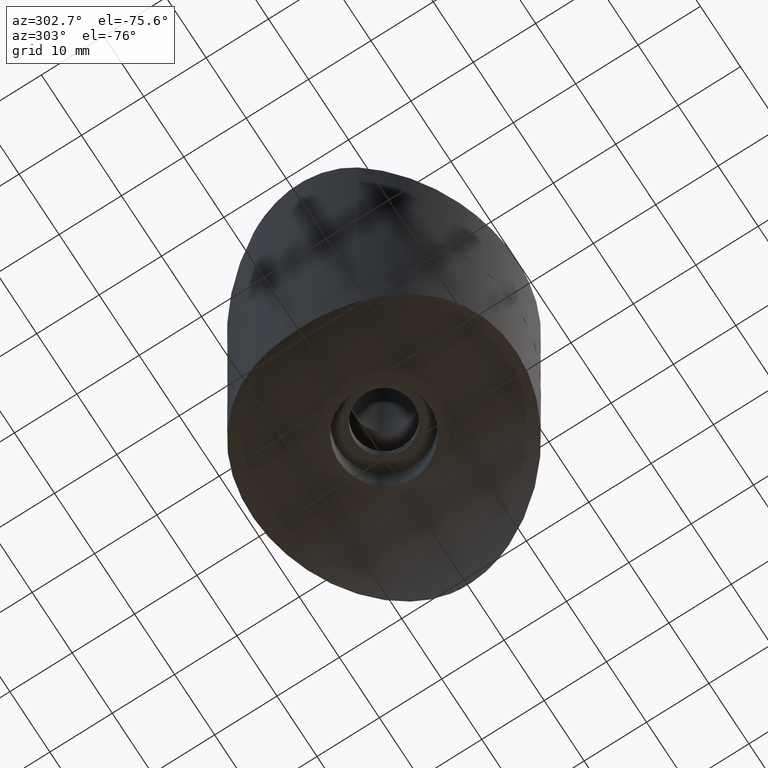
[diagram: clean part render]
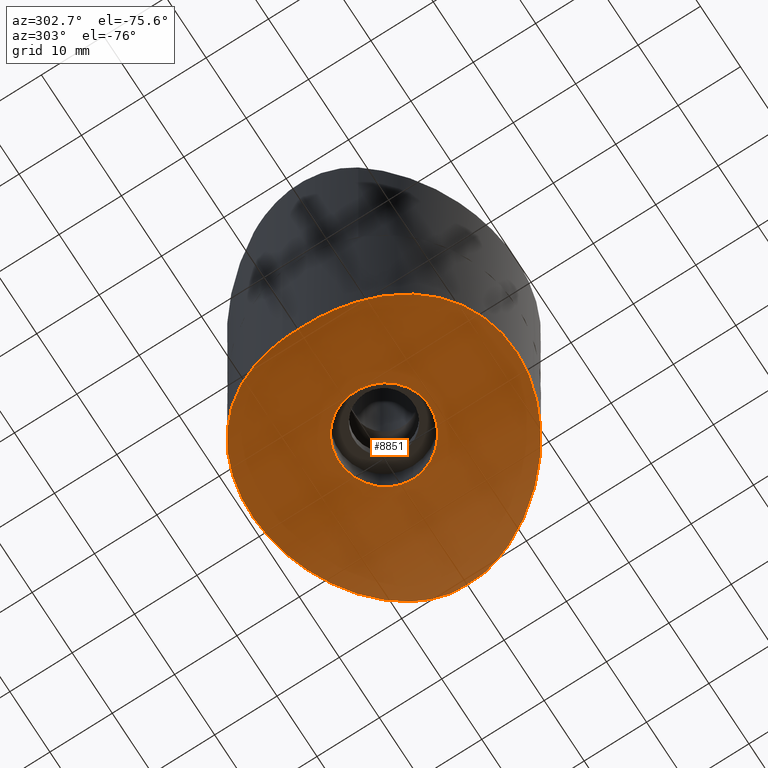
[diagram: same view with one face highlighted and labeled with its STEP entity id]
A machine part, auxiliary view. The second image highlights one B-rep face of the part: STEP entity #8851.
In plain terms, the highlighted cylindrical surface (partial cylindrical patch) has radius 24.15 mm, axis along (0, -1, 0).
Its self-contained STEP definition (entity closure, byte-faithful):
#42 = CARTESIAN_POINT ( 'NONE',  ( -19.23597846385222354, 8.932488683471675017, 34.54295748063633908 ) ) ;
#206 = EDGE_CURVE ( 'NONE', #9752, #12154, #13322, .T. ) ;
#403 = CARTESIAN_POINT ( 'NONE',  ( 7.647602592755208484, 19.77533550941512175, 26.24056046325635450 ) ) ;
#423 = CARTESIAN_POINT ( 'NONE',  ( 18.13045765174069501, -11.05191198984288725, 33.17200233731336567 ) ) ;
#456 = ORIENTED_EDGE ( 'NONE', *, *, #12804, .F. ) ;
#470 = CARTESIAN_POINT ( 'NONE',  ( -5.396076094516366162, -20.51278480333633780, 25.60116007777574865 ) ) ;
#573 = CARTESIAN_POINT ( 'NONE',  ( -9.162175566396577153, -19.16368644537788413, 26.76772449057559200 ) ) ;
#616 = CARTESIAN_POINT ( 'NONE',  ( -19.73511412023929168, -7.843637761432188604, 35.21260965036015023 ) ) ;
#720 = CARTESIAN_POINT ( 'NONE',  ( -1.887006463236361009, -7.016240821506663394, 25.06930831911330060 ) ) ;
#760 = CARTESIAN_POINT ( 'NONE',  ( 7.005132268049744759, -1.883515786305127504, 26.03818712466214436 ) ) ;
#812 = CARTESIAN_POINT ( 'NONE',  ( 7.063023397359133426, -1.653011571266923774, 26.05587597579659942 ) ) ;
#827 = B_SPLINE_CURVE_WITH_KNOTS ( 'NONE', 3,
 ( #8748, #4211, #3243, #10045, #4370, #1993, #8933, #7845 ),
 .UNSPECIFIED., .F., .F.,
 ( 4, 2, 2, 4 ),
 ( 0.007676782109143479027, 0.01052610812548005273, 0.01195077113364833958, 0.01337543414181662643 ),
 .UNSPECIFIED. ) ;
#863 = CARTESIAN_POINT ( 'NONE',  ( -0.9588759266909432366, 7.190294457754371038, 25.01786750220641053 ) ) ;
#916 = CARTESIAN_POINT ( 'NONE',  ( 4.430535015015584221, -5.758457711840870630, 25.40649481286305544 ) ) ;
#1023 = CARTESIAN_POINT ( 'NONE',  ( 4.428777119038296739, 5.759859945306606832, 25.40615654448816230 ) ) ;
#1098 = CARTESIAN_POINT ( 'NONE',  ( -18.12391036325159277, 11.06335513298896522, 33.16428687448349422 ) ) ;
#1416 = CARTESIAN_POINT ( 'NONE',  ( 21.00712700212032757, -2.853176320662111465, 37.23685116701751951 ) ) ;
#1547 = CARTESIAN_POINT ( 'NONE',  ( 20.96165513481468423, 3.187972766502427113, 37.15666805968751163 ) ) ;
#1569 = CARTESIAN_POINT ( 'NONE',  ( 16.39847894521176030, -13.44926250891399810, 31.41394777627913015 ) ) ;
#1616 = CARTESIAN_POINT ( 'NONE',  ( 6.773617160303725626, -20.13185422919217160, 25.93339866276988914 ) ) ;
#1668 = CARTESIAN_POINT ( 'NONE',  ( 0.7347191679847786538, -21.19844763048626746, 25.00136274186395013 ) ) ;
#1693 = CARTESIAN_POINT ( 'NONE',  ( 20.78756491447705912, 4.174717419718016131, 36.85715627027112617 ) ) ;
#1707 = CARTESIAN_POINT ( 'NONE',  ( -21.07074547752343818, -1.904051023200786341, 37.34967979011159400 ) ) ;
#1764 = CARTESIAN_POINT ( 'NONE',  ( -20.91628547743193423, -3.522016669705998027, 37.07666518487717155 ) ) ;
#1808 = CARTESIAN_POINT ( 'NONE',  ( -13.87356393974180868, -16.04150359184534835, 29.37493161141261666 ) ) ;
#1861 = CARTESIAN_POINT ( 'NONE',  ( -7.238159395298983334, -0.4782172060891010101, 26.11020484737139924 ) ) ;
#1908 = CARTESIAN_POINT ( 'NONE',  ( 3.221480690050006590, -6.512085145936918451, 25.21181015599480091 ) ) ;
#1915 = CARTESIAN_POINT ( 'NONE',  ( 0.000000000000000000, -21.19999999999999929, 49.14999999999979252 ) ) ;
#1934 = CYLINDRICAL_SURFACE ( 'NONE', #8668, 24.14999999999992042 ) ;
#1958 = CARTESIAN_POINT ( 'NONE',  ( -6.877376070853807200, 2.342668701104146045, 25.99919327012935000 ) ) ;
#1993 = CARTESIAN_POINT ( 'NONE',  ( 21.07074547752343818, 1.904051023200785675, 37.34967979011157979 ) ) ;
#2005 = CARTESIAN_POINT ( 'NONE',  ( -4.783167365172779739, -5.453412311661145928, 25.47768585661112084 ) ) ;
#2104 = CARTESIAN_POINT ( 'NONE',  ( 1.882875519516438167, 7.005316653640307756, 25.07241677952253767 ) ) ;
#2176 = CARTESIAN_POINT ( 'NONE',  ( -3.439803116376629166, 20.92192858588276394, 25.24374555963997580 ) ) ;
#2260 = CARTESIAN_POINT ( 'NONE',  ( 0.4759095739806156189, 7.250129997702256190, 24.99996097377580639 ) ) ;
#2345 = CARTESIAN_POINT ( 'NONE',  ( -10.86460074146358323, 18.21520422549882667, 27.57356249888234245 ) ) ;
#2529 = CARTESIAN_POINT ( 'NONE',  ( 19.71573332048203042, -7.816723346999874700, 35.19728964752894740 ) ) ;
#2573 = CARTESIAN_POINT ( 'NONE',  ( 20.50098138586953667, -5.437601084095699200, 36.38237944277855718 ) ) ;
#2674 = FACE_BOUND ( 'NONE', #6619, .T. ) ;
#2700 = CARTESIAN_POINT ( 'NONE',  ( 18.41838187507392632, 10.51468112685976308, 33.52365423217118945 ) ) ;
#2740 = CARTESIAN_POINT ( 'NONE',  ( 20.71935944404669883, 4.500574249301715568, 36.74229322337289716 ) ) ;
#2761 = CARTESIAN_POINT ( 'NONE',  ( -21.00712700212032047, -2.853176320662137222, 37.23685116701751241 ) ) ;
#2792 = CARTESIAN_POINT ( 'NONE',  ( 16.02780701566494770, 13.92706447072073672, 31.05704621812411403 ) ) ;
#2814 = CARTESIAN_POINT ( 'NONE',  ( 10.34671308708050397, -18.51491773498372950, 27.31973694149502307 ) ) ;
#2861 = CARTESIAN_POINT ( 'NONE',  ( -10.30406304709418208, -18.57071127658194598, 27.27495351244458632 ) ) ;
#2949 = CARTESIAN_POINT ( 'NONE',  ( -0.6422222868339445556, -21.20145147702313793, 24.99872582626054651 ) ) ;
#2965 = CARTESIAN_POINT ( 'NONE',  ( 0.4807107271748746191, -7.249688256254142260, 25.00009358764873824 ) ) ;
#3007 = CARTESIAN_POINT ( 'NONE',  ( 7.249999999999999112, -0.4819777699687032846, 26.11394130932974278 ) ) ;
#3056 = CARTESIAN_POINT ( 'NONE',  ( -7.250203973369105270, 0.4717505720782017575, 26.11400550463296000 ) ) ;
#3100 = CARTESIAN_POINT ( 'NONE',  ( -7.249897003482066893, -0.2405618492822135246, 26.11390889385921810 ) ) ;
#3153 = CARTESIAN_POINT ( 'NONE',  ( 7.202421268336048676, -0.9553088186341807120, 26.09881600218510656 ) ) ;
#3209 = CARTESIAN_POINT ( 'NONE',  ( 5.291107627380775114, 4.962046597767260536, 25.58613754225180159 ) ) ;
#3243 = CARTESIAN_POINT ( 'NONE',  ( 21.11524016553555327, -0.9635494102398249883, 37.42954211546661014 ) ) ;
#3280 = CARTESIAN_POINT ( 'NONE',  ( -21.00712700212032402, 2.853176320662146548, 37.23685116701751241 ) ) ;
#3367 = CARTESIAN_POINT ( 'NONE',  ( 7.249999999999998224, 0.4819777699686998984, 26.11394130932974278 ) ) ;
#3415 = CARTESIAN_POINT ( 'NONE',  ( 3.219168441476824238, 6.513313868482390134, 25.21147741431768807 ) ) ;
#3545 = CARTESIAN_POINT ( 'NONE',  ( 13.88689877286998886, 16.02995388467169491, 29.38430273930195469 ) ) ;
#3821 = CARTESIAN_POINT ( 'NONE',  ( 20.78775257781547126, -4.173603469984121794, 36.85748119412961898 ) ) ;
#3852 = CARTESIAN_POINT ( 'NONE',  ( 11.92158381141523016, 17.54180937855982592, 28.13896504426887546 ) ) ;
#3876 = CARTESIAN_POINT ( 'NONE',  ( 19.23420582344855845, -8.936253722288524770, 34.54063338520331428 ) ) ;
#3953 = CARTESIAN_POINT ( 'NONE',  ( 17.12039434767141088, 12.51740899731145262, 32.10974278505898383 ) ) ;
#3977 = CARTESIAN_POINT ( 'NONE',  ( 10.89474468146732811, -18.19709753500846361, 27.58884435939416591 ) ) ;
#4019 = CARTESIAN_POINT ( 'NONE',  ( 3.811110620333657106, -20.85745351731364750, 25.30016142219273689 ) ) ;
#4042 = EDGE_CURVE ( 'NONE', #6021, #6021, #7589, .T. ) ;
#4062 = CARTESIAN_POINT ( 'NONE',  ( -17.11432993022324212, -12.52577624766683684, 32.10360622135683428 ) ) ;
#4075 = ORIENTED_EDGE ( 'NONE', *, *, #9653, .T. ) ;
#4088 = VERTEX_POINT ( 'NONE', #12140 ) ;
#4100 = CARTESIAN_POINT ( 'NONE',  ( -21.11524016553555683, 0.9635494102398448613, 37.42954211546661014 ) ) ;
#4113 = CARTESIAN_POINT ( 'NONE',  ( -1.332994956151982713, -21.16950665509390106, 25.02678527103411099 ) ) ;
#4131 = CARTESIAN_POINT ( 'NONE',  ( -4.228520255933796435, -5.893855298342533189, 25.37224818271707250 ) ) ;
#4175 = CARTESIAN_POINT ( 'NONE',  ( 6.511077239207358147, -3.223923639002027830, 25.89350832831115312 ) ) ;
#4211 = CARTESIAN_POINT ( 'NONE',  ( 21.07978195284255918, -1.911249871734046923, 37.36496773792185877 ) ) ;
#4223 = CARTESIAN_POINT ( 'NONE',  ( 3.638877831533089413, -6.288723548186531787, 25.27234837304858672 ) ) ;
#4276 = CARTESIAN_POINT ( 'NONE',  ( 5.751404433098323388, -4.420405091081876847, 25.69434470690511674 ) ) ;
#4327 = CARTESIAN_POINT ( 'NONE',  ( 1.889932500870401766, -7.003379799992317523, 25.07297993355162546 ) ) ;
#4370 = CARTESIAN_POINT ( 'NONE',  ( 21.10684463693948487, 0.9447644106517186779, 37.41437127774679539 ) ) ;
#4456 = CARTESIAN_POINT ( 'NONE',  ( -19.71784070396991595, 7.811464620351530996, 35.20025747201218991 ) ) ;
#4509 = CARTESIAN_POINT ( 'NONE',  ( -18.97183492088005252, 9.479871736913381142, 34.20037985494270316 ) ) ;
#4535 = CARTESIAN_POINT ( 'NONE',  ( 3.635904837538693979, 6.290488802313167760, 25.27188523307730250 ) ) ;
#4558 = CARTESIAN_POINT ( 'NONE',  ( 1.362535519911034720, 21.16752491143684978, 25.02852471459105743 ) ) ;
#4591 = CARTESIAN_POINT ( 'NONE',  ( 6.287576360483358329, 3.640402073505393687, 25.83128016843673080 ) ) ;
#4907 = EDGE_CURVE ( 'NONE', #4088, #12154, #827, .T. ) ;
#4981 = CARTESIAN_POINT ( 'NONE',  ( 21.00712700212032402, 2.853176320662127896, 37.23685116701751241 ) ) ;
#5001 = CARTESIAN_POINT ( 'NONE',  ( 20.72086091090560700, -4.493368329470233569, 36.74482401454351788 ) ) ;
#5032 = CARTESIAN_POINT ( 'NONE',  ( 5.422092578124641626, 20.50587517643577584, 25.60717943683935971 ) ) ;
#5055 = CARTESIAN_POINT ( 'NONE',  ( 15.19693727668651917, -14.79376332302379637, 30.37340210289483977 ) ) ;
#5129 = CARTESIAN_POINT ( 'NONE',  ( 6.386273738954107770, 20.21801199179768460, 25.85733474396101172 ) ) ;
#5154 = CARTESIAN_POINT ( 'NONE',  ( -13.40629872976561998, -16.43454344511161835, 29.05445220192506639 ) ) ;
#5197 = CARTESIAN_POINT ( 'NONE',  ( -15.21121093450936179, -14.81625854981715307, 30.35989657932969621 ) ) ;
#5248 = CARTESIAN_POINT ( 'NONE',  ( 2.788077751111214031, -21.01869043531653602, 25.15901743832320392 ) ) ;
#5278 = CARTESIAN_POINT ( 'NONE',  ( -21.04350152100328231, -2.381603206066747802, 37.30099240696407037 ) ) ;
#5302 = CARTESIAN_POINT ( 'NONE',  ( 6.784652654092806934, -2.566576703426461048, 25.97242471081404958 ) ) ;
#5355 = CARTESIAN_POINT ( 'NONE',  ( -7.155131508516586081, -1.193129468298084417, 26.08424595322770401 ) ) ;
#5368 = CARTESIAN_POINT ( 'NONE',  ( -21.00712700212032402, 2.853176320662146548, 37.23685116701751241 ) ) ;
#5401 = CARTESIAN_POINT ( 'NONE',  ( -5.461977603441229512, -4.790947819237313610, 25.62328152599137354 ) ) ;
#5442 = CARTESIAN_POINT ( 'NONE',  ( 0.9530173313449618044, -7.202959378916134803, 25.01424629614210460 ) ) ;
#5489 = CARTESIAN_POINT ( 'NONE',  ( -0.9548036046264919419, -7.202553625920777414, 25.01436544652671046 ) ) ;
#5615 = CARTESIAN_POINT ( 'NONE',  ( -6.738059069938740819, 20.14389076958427083, 25.92295129678037569 ) ) ;
#5668 = CARTESIAN_POINT ( 'NONE',  ( -3.780921063279433447, 20.86292830591651182, 25.29537290220894974 ) ) ;
#5721 = CARTESIAN_POINT ( 'NONE',  ( -0.7009264218913946465, 21.19955676658834420, 25.00038909100973683 ) ) ;
#5829 = CARTESIAN_POINT ( 'NONE',  ( -2.756304289599201152, 21.02289532617592727, 25.15533322778153291 ) ) ;
#5885 = EDGE_LOOP ( 'NONE', ( #456, #13967, #11452, #4075 ) ) ;
#6021 = VERTEX_POINT ( 'NONE', #10151 ) ;
#6092 = CARTESIAN_POINT ( 'NONE',  ( 20.32309887453862984, 6.066109017756510902, 36.09937665069506352 ) ) ;
#6141 = CARTESIAN_POINT ( 'NONE',  ( 15.22310809826112710, 14.80400270599857926, 30.36957234920756221 ) ) ;
#6207 = CARTESIAN_POINT ( 'NONE',  ( 18.97323679878745395, -9.476858588178714626, 34.20223640908989182 ) ) ;
#6232 = CARTESIAN_POINT ( 'NONE',  ( 7.334752425999731429, 19.89354010316624510, 26.13842956057309408 ) ) ;
#6251 = CARTESIAN_POINT ( 'NONE',  ( -2.719297261495661200, -21.03640439753937486, 25.14350532009003913 ) ) ;
#6347 = CARTESIAN_POINT ( 'NONE',  ( -3.402102689720538642, -20.93633553200553266, 25.23120817832914398 ) ) ;
#6437 = CARTESIAN_POINT ( 'NONE',  ( -11.90780048948769654, -17.55122632899825419, 28.13110359627880896 ) ) ;
#6456 = CARTESIAN_POINT ( 'NONE',  ( -7.015941670273372566, 1.889294121607443921, 26.04137131818981032 ) ) ;
#6499 = CARTESIAN_POINT ( 'NONE',  ( -6.287189625676647076, 3.640949459774311503, 25.83118226600530321 ) ) ;
#6539 = CARTESIAN_POINT ( 'NONE',  ( -4.420085787299028901, 5.751629280268361732, 25.40721230515005047 ) ) ;
#6541 = B_SPLINE_CURVE_WITH_KNOTS ( 'NONE', 3,
 ( #14269, #9713, #4100, #12020, #12162, #1707, #5278, #13317 ),
 .UNSPECIFIED., .F., .F.,
 ( 4, 2, 2, 4 ),
 ( 0.007676782109143449537, 0.01052610812548004406, 0.01195077113364833958, 0.01337543414181663684 ),
 .UNSPECIFIED. ) ;
#6591 = CARTESIAN_POINT ( 'NONE',  ( -1.891178497224052846, 7.015027855281248392, 25.06966207377698197 ) ) ;
#6619 = EDGE_LOOP ( 'NONE', ( #12460 ) ) ;
#6647 = CARTESIAN_POINT ( 'NONE',  ( -4.960207737149437079, -5.292901783625873158, 25.51426149708310831 ) ) ;
#6819 = CARTESIAN_POINT ( 'NONE',  ( 21.00712700212032402, 2.853176320662127896, 37.23685116701751241 ) ) ;
#6824 = CARTESIAN_POINT ( 'NONE',  ( 0.6738532056318576879, 21.20043459002589259, 24.99961849655812784 ) ) ;
#6854 = CARTESIAN_POINT ( 'NONE',  ( 5.750336783304170751, 4.421788825645392329, 25.69408307455882934 ) ) ;
#7326 = CARTESIAN_POINT ( 'NONE',  ( 19.93680325968655254, -7.235709379913692452, 35.51649783850340469 ) ) ;
#7354 = CARTESIAN_POINT ( 'NONE',  ( 6.704504597749570749, 20.11469982589219541, 25.94697034139354841 ) ) ;
#7377 = CARTESIAN_POINT ( 'NONE',  ( -12.42468894060447759, -17.18866395652079504, 28.43317129322997161 ) ) ;
#7404 = CARTESIAN_POINT ( 'NONE',  ( 19.26095484813178871, 8.937385452166589417, 34.55458941497773395 ) ) ;
#7420 = CARTESIAN_POINT ( 'NONE',  ( -18.11090023929508064, -11.03589552853494560, 33.16726000232421967 ) ) ;
#7447 = CARTESIAN_POINT ( 'NONE',  ( 4.766678230917356984, 20.66841490208581789, 25.46536838872536990 ) ) ;
#7471 = CARTESIAN_POINT ( 'NONE',  ( 2.446709694631026277, -21.06114192269938812, 25.12180968013061388 ) ) ;
#7516 = CARTESIAN_POINT ( 'NONE',  ( -20.57230812902643180, -5.131032304698399216, 36.49997264052047541 ) ) ;
#7560 = CARTESIAN_POINT ( 'NONE',  ( 3.469661371898516311, -20.91698293555415233, 25.24807388963649402 ) ) ;
#7589 = B_SPLINE_CURVE_WITH_KNOTS ( 'NONE', 3,
 ( #12232, #3007, #3153, #812, #760, #12327, #5302, #4175, #7656, #11159, #4276, #13431, #8805, #12376, #916, #4223, #1908, #9865, #11204, #4327, #8944, #5442, #2965, #12274, #5489, #720, #13339, #11018, #7755, #8760, #14579, #4131, #10058, #2005, #6647, #5401, #9957, #13534, #9909, #11065, #14679, #5355, #13388, #1861, #3100, #3056, #7706, #6456, #1958, #11113, #6499, #14492, #7806, #12188, #14536, #6539, #8845, #10007, #7616, #13482, #6591, #14628, #863, #8897, #10162, #2260, #12478, #13688, #2104, #9051, #10324, #3415, #4535, #1023, #10108, #3209, #13742, #6854, #7857, #4591, #11469, #14840, #7955, #10215, #3367, #14896 ),
 .UNSPECIFIED., .T., .F.,
 ( 4, 2, 2, 2, 2, 2, 2, 2, 2, 2, 2, 2, 2, 2, 2, 2, 2, 2, 2, 2, 2, 2, 2, 2, 2, 2, 2, 2, 2, 2, 2, 2, 2, 2, 2, 2, 2, 2, 2, 2, 2, 2, 4 ),
 ( 0.000000000000000000, 0.001424720433073833068, 0.002137080649610749276, 0.002849440866147664835, 0.004274161299221496818, 0.004986521515758413244, 0.005698881732295329669, 0.007123602165369164255, 0.008548322598442998840, 0.009260682814979916133, 0.009973043031516835161, 0.01139776346459066628, 0.01282248389766449913, 0.01424720433073833371, 0.01495956454727525101, 0.01567192476381216656, 0.01638428498034908212, 0.01709664519688599768, 0.01852136562995982880, 0.01994608606303366338, 0.02137080649610749797, 0.02208316671264441353, 0.02279552692918132908, 0.02422024736225516020, 0.02564496779532899479, 0.02706968822840282590, 0.02849440866147665702, 0.02920676887801357952, 0.02991912909455049507, 0.03134384952762432619, 0.03276856996069816425, 0.03348093017723507980, 0.03419329039377199536, 0.03561801082684582648, 0.03633037104338274204, 0.03704273125991965759, 0.03846745169299348871, 0.03989217212606732677, 0.04060453234260424232, 0.04131689255914115788, 0.04274161299221498900, 0.04416633342528881317, 0.04559105385836263735 ),
 .UNSPECIFIED. ) ;
#7616 = CARTESIAN_POINT ( 'NONE',  ( -3.228525279233163126, 6.509093773792967497, 25.21264255871480486 ) ) ;
#7656 = CARTESIAN_POINT ( 'NONE',  ( 6.288279808588548292, -3.639174042621816429, 25.83147146888198264 ) ) ;
#7706 = CARTESIAN_POINT ( 'NONE',  ( -7.203772017884860546, 0.9479127137863742059, 26.09923372664590957 ) ) ;
#7755 = CARTESIAN_POINT ( 'NONE',  ( -3.217946500129026610, -6.501028593805384226, 25.21442509437558854 ) ) ;
#7806 = CARTESIAN_POINT ( 'NONE',  ( -5.463935351666974860, 4.788709261913862925, 25.62373870971187628 ) ) ;
#7845 = CARTESIAN_POINT ( 'NONE',  ( 21.00712700212032402, 2.853176320662127896, 37.23685116701751241 ) ) ;
#7857 = CARTESIAN_POINT ( 'NONE',  ( 5.892937365032688390, 4.229858171171289705, 25.72961908978055945 ) ) ;
#7955 = CARTESIAN_POINT ( 'NONE',  ( 7.015820218399773545, 1.888619147174173118, 26.04133722469318357 ) ) ;
#8053 = B_SPLINE_CURVE_WITH_KNOTS ( 'NONE', 3,
 ( #1416, #14086, #8319, #3821, #5001, #2573, #14181, #7326, #2529, #3876, #6207, #423, #8471, #1569, #11932, #5055, #11728, #13083, #12886, #3977, #2814, #14428, #10865, #11002, #10914, #1616, #10957, #4019, #7560, #5248, #7471, #12079, #1668, #2949, #4113, #6251, #6347, #8608, #470, #9722, #9768, #573, #2861, #6437, #7377, #5154, #1808, #5197, #13138, #4062, #13235, #7420, #14386, #12124, #616, #13278, #10818, #12171, #7516, #8653, #1764, #2761 ),
 .UNSPECIFIED., .F., .F.,
 ( 4, 2, 2, 2, 2, 2, 2, 2, 2, 2, 2, 2, 2, 2, 2, 2, 2, 2, 2, 2, 2, 2, 2, 2, 2, 2, 2, 2, 2, 2, 4 ),
 ( 0.07476078482839286499, 0.07578968248729871238, 0.07681858014620454589, 0.07887637546401624067, 0.08093417078182793545, 0.08299196609963963023, 0.08710755673526300591, 0.08916535205307470069, 0.09122314737088639547, 0.09533873800650977115, 0.09739653332432147981, 0.09842543098322732720, 0.09945432864213318847, 0.1035699192777566058, 0.1045988169366624532, 0.1056277145955683144, 0.1076855099133800231, 0.1097433052311917456, 0.1118011005490034682, 0.1138588958668151629, 0.1159166911846268855, 0.1200322818202503167, 0.1220900771380620253, 0.1241478724558737479, 0.1282634630914971652, 0.1303212584093088877, 0.1323790537271206103, 0.1364946443627440276, 0.1375235420216499027, 0.1385524396805557501, 0.1406102349983675004 ),
 .UNSPECIFIED. ) ;
#8319 = CARTESIAN_POINT ( 'NONE',  ( 20.90794619724893977, -3.522415218863476749, 37.06304580789293368 ) ) ;
#8447 = CARTESIAN_POINT ( 'NONE',  ( 19.73789465108027130, 7.835791004179342600, 35.21671304316074469 ) ) ;
#8471 = CARTESIAN_POINT ( 'NONE',  ( 17.48940784883374633, -12.04041976419779303, 32.46576331103037205 ) ) ;
#8608 = CARTESIAN_POINT ( 'NONE',  ( -4.739745974947039642, -20.67460413921133622, 25.45996595585380362 ) ) ;
#8653 = CARTESIAN_POINT ( 'NONE',  ( -20.79541592569758635, -4.173738557589052434, 36.86767968655849614 ) ) ;
#8668 = AXIS2_PLACEMENT_3D ( 'NONE', #1915, #11119, #10981 ) ;
#8748 = CARTESIAN_POINT ( 'NONE',  ( 21.00712700212032757, -2.853176320662111465, 37.23685116701751951 ) ) ;
#8760 = CARTESIAN_POINT ( 'NONE',  ( -3.635229885871472888, -6.277233158966990523, 25.27423761599817098 ) ) ;
#8805 = CARTESIAN_POINT ( 'NONE',  ( 5.292161427922066785, -4.960920004862202859, 25.58637474294738112 ) ) ;
#8845 = CARTESIAN_POINT ( 'NONE',  ( -4.231050712837536310, 5.892028891758601894, 25.37270058855538224 ) ) ;
#8851 = ADVANCED_FACE ( 'NONE', ( #2674, #12207 ), #1934, .F. ) ;
#8897 = CARTESIAN_POINT ( 'NONE',  ( -0.4825929110062018301, 7.237878246713409958, 25.00364694169946489 ) ) ;
#8933 = CARTESIAN_POINT ( 'NONE',  ( 21.04350152100328231, 2.381603206066742917, 37.30099240696406326 ) ) ;
#8944 = CARTESIAN_POINT ( 'NONE',  ( 1.655916322836521903, -7.062402749334220076, 25.05569510540811962 ) ) ;
#9051 = CARTESIAN_POINT ( 'NONE',  ( 2.340393982012675789, 6.866020510362850438, 25.11257522175116463 ) ) ;
#9076 = CARTESIAN_POINT ( 'NONE',  ( -5.459644923684983553, 20.53062450731297872, 25.58578250206875282 ) ) ;
#9126 = CARTESIAN_POINT ( 'NONE',  ( -17.48167452434349656, 12.05102649167851503, 32.45797247212890824 ) ) ;
#9181 = CARTESIAN_POINT ( 'NONE',  ( 3.425821476951149247, 20.92421268954094771, 25.24174641364692917 ) ) ;
#9231 = CARTESIAN_POINT ( 'NONE',  ( -15.22914346387899442, 14.79897448196191156, 30.37367959076336632 ) ) ;
#9595 = CARTESIAN_POINT ( 'NONE',  ( 18.11606535869906409, 11.02746840334428846, 33.17309545253782233 ) ) ;
#9653 = EDGE_CURVE ( 'NONE', #9752, #13575, #6541, .T. ) ;
#9713 = CARTESIAN_POINT ( 'NONE',  ( -21.07978195284255918, 1.911249871734074013, 37.36496773792185166 ) ) ;
#9722 = CARTESIAN_POINT ( 'NONE',  ( -6.684926643207512065, -20.12967295761984587, 25.93411632792565058 ) ) ;
#9752 = VERTEX_POINT ( 'NONE', #5368 ) ;
#9768 = CARTESIAN_POINT ( 'NONE',  ( -7.320856984933171496, -19.90686157654474897, 26.12718832269881020 ) ) ;
#9865 = CARTESIAN_POINT ( 'NONE',  ( 2.567971062528682236, -6.784076747656210493, 25.13591835332813318 ) ) ;
#9909 = CARTESIAN_POINT ( 'NONE',  ( -6.512588624488568456, -3.220621262753792458, 25.89393799316437139 ) ) ;
#9957 = CARTESIAN_POINT ( 'NONE',  ( -5.760028374301387366, -4.427944264599123159, 25.69540580167704391 ) ) ;
#10007 = CARTESIAN_POINT ( 'NONE',  ( -3.645004378345051865, 6.284713316097240821, 25.27336973469316206 ) ) ;
#10045 = CARTESIAN_POINT ( 'NONE',  ( 21.11561937266606392, 0.4666049287537762380, 37.43022531886662563 ) ) ;
#10058 = CARTESIAN_POINT ( 'NONE',  ( -4.417710530253419421, -5.753453706698207881, 25.40676979395114188 ) ) ;
#10108 = CARTESIAN_POINT ( 'NONE',  ( 4.792431585243525305, 5.460403369030790266, 25.47784684677926137 ) ) ;
#10151 = CARTESIAN_POINT ( 'NONE',  ( 7.250000000000000000, 0.000000000000000000, 26.11394130932973923 ) ) ;
#10162 = CARTESIAN_POINT ( 'NONE',  ( -0.2409192066514788677, 7.249934597112834389, 25.00001963440625019 ) ) ;
#10215 = CARTESIAN_POINT ( 'NONE',  ( 7.202398825524178427, 0.9560683961244186291, 26.09880741137574134 ) ) ;
#10238 = CARTESIAN_POINT ( 'NONE',  ( -20.32686963344740860, 6.053652321874340991, 36.10523345372588722 ) ) ;
#10324 = CARTESIAN_POINT ( 'NONE',  ( 2.563886665923539088, 6.785641894124005091, 25.13547653139329086 ) ) ;
#10348 = CARTESIAN_POINT ( 'NONE',  ( -20.49924794731434829, 5.444501353832460921, 36.37956202324320287 ) ) ;
#10404 = CARTESIAN_POINT ( 'NONE',  ( -10.31495904492767757, 18.53260357518112045, 27.30472957381795140 ) ) ;
#10799 = CARTESIAN_POINT ( 'NONE',  ( 17.46632211069666951, 12.03014860227426652, 32.46524962953408533 ) ) ;
#10818 = CARTESIAN_POINT ( 'NONE',  ( -20.31758393461505818, -6.061181971976252747, 36.09455763031164111 ) ) ;
#10865 = CARTESIAN_POINT ( 'NONE',  ( 9.193944427551349108, -19.10546457622275440, 26.81625294661537140 ) ) ;
#10914 = CARTESIAN_POINT ( 'NONE',  ( 8.297915674280389453, -19.51135402070470803, 26.46803649580949269 ) ) ;
#10957 = CARTESIAN_POINT ( 'NONE',  ( 5.494981701214612713, -20.52150282753266453, 25.59373744268203410 ) ) ;
#10981 = DIRECTION ( 'NONE',  ( 0.000000000000000000, 0.000000000000000000, 1.000000000000000000 ) ) ;
#11002 = CARTESIAN_POINT ( 'NONE',  ( 8.599035988269617903, -19.38050491815548426, 26.58051946424301093 ) ) ;
#11018 = CARTESIAN_POINT ( 'NONE',  ( -3.001560036107231433, -6.603793025683311946, 25.18622827745646475 ) ) ;
#11065 = CARTESIAN_POINT ( 'NONE',  ( -6.875825524705430958, -2.347176018906345085, 25.99873104965063320 ) ) ;
#11113 = CARTESIAN_POINT ( 'NONE',  ( -6.514537617548423754, 3.216706062516760500, 25.89448552507762003 ) ) ;
#11119 = DIRECTION ( 'NONE',  ( 0.000000000000000000, 1.000000000000000000, 0.000000000000000000 ) ) ;
#11159 = CARTESIAN_POINT ( 'NONE',  ( 5.893845718678322854, -4.228589636074408631, 25.72984806632669930 ) ) ;
#11204 = CARTESIAN_POINT ( 'NONE',  ( 2.345293780030233588, -6.864311368676264458, 25.11306306487129447 ) ) ;
#11330 = CARTESIAN_POINT ( 'NONE',  ( -19.93619111571723579, 7.237169289639269643, 35.51563726683364308 ) ) ;
#11383 = CARTESIAN_POINT ( 'NONE',  ( -8.570758456313948059, 19.40145724746611222, 26.56276284366633789 ) ) ;
#11437 = CARTESIAN_POINT ( 'NONE',  ( -2.414227268749573607, 21.06489676682234347, 25.11851826139664468 ) ) ;
#11452 = ORIENTED_EDGE ( 'NONE', *, *, #206, .F. ) ;
#11469 = CARTESIAN_POINT ( 'NONE',  ( 6.510153906180984329, 3.225617090496233796, 25.89325207806502505 ) ) ;
#11543 = CARTESIAN_POINT ( 'NONE',  ( -9.169580895146779653, 19.12523363466994297, 26.79976496099160244 ) ) ;
#11728 = CARTESIAN_POINT ( 'NONE',  ( 14.77124380860952790, -15.21887845930735317, 30.03618459972230070 ) ) ;
#11865 = CARTESIAN_POINT ( 'NONE',  ( 20.49626044570750949, 5.456317908815809581, 36.37471211098660007 ) ) ;
#11913 = CARTESIAN_POINT ( 'NONE',  ( -21.00712700212032047, -2.853176320662137222, 37.23685116701751241 ) ) ;
#11932 = CARTESIAN_POINT ( 'NONE',  ( 16.01187202440502588, -13.90763423890864914, 31.06333404258283082 ) ) ;
#12020 = CARTESIAN_POINT ( 'NONE',  ( -21.11561937266605327, -0.4666049287537661350, 37.43022531886661142 ) ) ;
#12079 = CARTESIAN_POINT ( 'NONE',  ( 1.420887558291040742, -21.16349281707161722, 25.03206368576842422 ) ) ;
#12124 = CARTESIAN_POINT ( 'NONE',  ( -19.25661272791660750, -8.946743911207136080, 34.54883055296303240 ) ) ;
#12140 = CARTESIAN_POINT ( 'NONE',  ( 21.00712700212032757, -2.853176320662111465, 37.23685116701751951 ) ) ;
#12154 = VERTEX_POINT ( 'NONE', #6819 ) ;
#12162 = CARTESIAN_POINT ( 'NONE',  ( -21.10684463693948487, -0.9447644106517127938, 37.41437127774679539 ) ) ;
#12171 = CARTESIAN_POINT ( 'NONE',  ( -20.49105945584381772, -5.445973394592721561, 36.36855740593200892 ) ) ;
#12188 = CARTESIAN_POINT ( 'NONE',  ( -4.962435920999253014, 5.290811488851237421, 25.51472985797474635 ) ) ;
#12207 = FACE_OUTER_BOUND ( 'NONE', #5885, .T. ) ;
#12232 = CARTESIAN_POINT ( 'NONE',  ( 7.249999999999999112, 2.710505431213761085E-17, 26.11394130932974278 ) ) ;
#12274 = CARTESIAN_POINT ( 'NONE',  ( -0.4712609527894480732, -7.250308664496026623, 24.99990733676323629 ) ) ;
#12327 = CARTESIAN_POINT ( 'NONE',  ( 6.866026250664987174, -2.340340431499600804, 25.99648069941237338 ) ) ;
#12376 = CARTESIAN_POINT ( 'NONE',  ( 4.793714833284061783, -5.459267129612246805, 25.47810887501587729 ) ) ;
#12460 = ORIENTED_EDGE ( 'NONE', *, *, #4042, .T. ) ;
#12478 = CARTESIAN_POINT ( 'NONE',  ( 0.9484403245173245178, 7.203466903221691808, 25.01409243754132561 ) ) ;
#12501 = CARTESIAN_POINT ( 'NONE',  ( -13.42585203374231995, 16.45244521429033213, 29.04468936022668757 ) ) ;
#12551 = CARTESIAN_POINT ( 'NONE',  ( -16.03420671538043862, 13.91906601344596162, 31.06307261653499552 ) ) ;
#12601 = CARTESIAN_POINT ( 'NONE',  ( 2.397545058263120143, 21.06684435726973348, 25.11681105345133957 ) ) ;
#12713 = CARTESIAN_POINT ( 'NONE',  ( -12.45104149909782620, 17.20419781855310859, 28.42241249851037921 ) ) ;
#12804 = EDGE_CURVE ( 'NONE', #4088, #13575, #8053, .T. ) ;
#12886 = CARTESIAN_POINT ( 'NONE',  ( 12.47278208995789939, -17.18804783645635581, 28.43580718764166093 ) ) ;
#12968 = CARTESIAN_POINT ( 'NONE',  ( 10.32276833466531230, 18.56010240527081834, 27.28395427053589728 ) ) ;
#13062 = CARTESIAN_POINT ( 'NONE',  ( 12.43782335648389115, 17.17918493977555627, 28.44104076608774534 ) ) ;
#13083 = CARTESIAN_POINT ( 'NONE',  ( 13.43728507003779704, -16.44186701067604517, 29.05317932647978552 ) ) ;
#13138 = CARTESIAN_POINT ( 'NONE',  ( -16.01796862811177746, -13.93865557711452396, 31.04816306842856832 ) ) ;
#13162 = CARTESIAN_POINT ( 'NONE',  ( 13.41983423763205607, 16.42351649545815562, 29.06347487907841654 ) ) ;
#13235 = CARTESIAN_POINT ( 'NONE',  ( -17.46181780022040542, -12.03663643657735705, 32.46055410078244563 ) ) ;
#13278 = CARTESIAN_POINT ( 'NONE',  ( -20.22508542976153834, -6.362645344179731488, 35.95152047384166138 ) ) ;
#13317 = CARTESIAN_POINT ( 'NONE',  ( -21.00712700212032047, -2.853176320662137222, 37.23685116701751241 ) ) ;
#13322 = B_SPLINE_CURVE_WITH_KNOTS ( 'NONE', 3,
 ( #3280, #13871, #13816, #10348, #10238, #11330, #4456, #42, #4509, #1098, #9126, #12551, #9231, #12501, #12713, #2345, #10404, #11543, #11383, #5615, #9076, #5668, #2176, #5829, #11437, #13710, #5721, #6824, #4558, #12601, #13767, #9181, #14211, #7447, #5032, #5129, #7354, #6232, #403, #14309, #12968, #3852, #13062, #13162, #3545, #6141, #2792, #3953, #10799, #9595, #2700, #7404, #8447, #6092, #11865, #2740, #1693, #14256, #1547, #4981 ),
 .UNSPECIFIED., .F., .F.,
 ( 4, 2, 2, 2, 2, 2, 2, 2, 2, 2, 2, 2, 2, 2, 2, 2, 2, 2, 2, 2, 2, 2, 2, 2, 2, 2, 2, 2, 2, 4 ),
 ( 0.002876814490489164149, 0.004944479718715505401, 0.007012144946941847520, 0.009079810175168189640, 0.01114747540339453349, 0.01528280585984721426, 0.01941813631629989850, 0.02355346677275258274, 0.02562113200097892660, 0.02768879722920527045, 0.03182412768565797551, 0.03285796029977115090, 0.03389179291388432630, 0.03595945814211067015, 0.03802712337033702095, 0.03906095598445019634, 0.04009478859856337174, 0.04216245382678972253, 0.04319628644090289793, 0.04423011905501608027, 0.04836544951146879573, 0.05043311473969515346, 0.05250077996792150425, 0.05663611042437421972, 0.05870377565260058439, 0.06077144088082694212, 0.06490677133727969228, 0.06697443656550604307, 0.06800826917961923235, 0.06904210179373240774 ),
 .UNSPECIFIED. ) ;
#13339 = CARTESIAN_POINT ( 'NONE',  ( -2.340435523965494813, -6.878418529272458670, 25.10958126736843354 ) ) ;
#13388 = CARTESIAN_POINT ( 'NONE',  ( -7.190937394407021621, -0.9539719690186894141, 26.09542276474014244 ) ) ;
#13431 = CARTESIAN_POINT ( 'NONE',  ( 5.450528033875965406, -4.786478692552370795, 25.62260825477066817 ) ) ;
#13482 = CARTESIAN_POINT ( 'NONE',  ( -2.344622196554749127, 6.877094153063540993, 25.10996664923441912 ) ) ;
#13534 = CARTESIAN_POINT ( 'NONE',  ( -6.284815106235165594, -3.644957662798243625, 25.83054428248377477 ) ) ;
#13575 = VERTEX_POINT ( 'NONE', #11913 ) ;
#13688 = CARTESIAN_POINT ( 'NONE',  ( 1.649311365242447147, 7.063923530108980664, 25.05524869917372044 ) ) ;
#13710 = CARTESIAN_POINT ( 'NONE',  ( -1.387023609978884187, 21.16576580031034993, 25.03006847154548709 ) ) ;
#13742 = CARTESIAN_POINT ( 'NONE',  ( 5.449496473532436269, 4.787648454615373694, 25.62236943252517207 ) ) ;
#13767 = CARTESIAN_POINT ( 'NONE',  ( 2.743438436160833049, 21.02456836693874820, 25.15386723056608886 ) ) ;
#13816 = CARTESIAN_POINT ( 'NONE',  ( -20.79406664808735172, 4.179539882840713538, 36.86545504470902301 ) ) ;
#13871 = CARTESIAN_POINT ( 'NONE',  ( -20.91659288712053666, 3.519753299467171193, 37.07720725771289239 ) ) ;
#13967 = ORIENTED_EDGE ( 'NONE', *, *, #4907, .T. ) ;
#14086 = CARTESIAN_POINT ( 'NONE',  ( 20.96141797359584302, -3.189718917207542415, 37.15624985993915885 ) ) ;
#14181 = CARTESIAN_POINT ( 'NONE',  ( 20.32889199674472636, -6.047128626935875495, 36.10834920005644477 ) ) ;
#14211 = CARTESIAN_POINT ( 'NONE',  ( 3.763541884711373520, 20.86604661795063009, 25.29264523335092463 ) ) ;
#14256 = CARTESIAN_POINT ( 'NONE',  ( 20.90854190279605973, 3.519090238558236994, 37.06406861114324158 ) ) ;
#14269 = CARTESIAN_POINT ( 'NONE',  ( -21.00712700212032402, 2.853176320662146548, 37.23685116701751241 ) ) ;
#14309 = CARTESIAN_POINT ( 'NONE',  ( 9.182794294595000295, 19.15389797846811604, 26.77611536156753402 ) ) ;
#14386 = CARTESIAN_POINT ( 'NONE',  ( -18.41323416484399900, -10.52369458327454410, 33.51758165432687520 ) ) ;
#14428 = CARTESIAN_POINT ( 'NONE',  ( 9.487525447089897312, -18.96130331756538112, 26.93947433944209280 ) ) ;
#14492 = CARTESIAN_POINT ( 'NONE',  ( -5.762065438270885132, 4.425366452954047070, 25.69590407230399975 ) ) ;
#14536 = CARTESIAN_POINT ( 'NONE',  ( -4.785424623598840910, 5.451431822611109368, 25.47814250926525403 ) ) ;
#14579 = CARTESIAN_POINT ( 'NONE',  ( -3.837279822448173228, -6.155745072440454990, 25.30598296000911773 ) ) ;
#14628 = CARTESIAN_POINT ( 'NONE',  ( -1.194082458193165497, 7.154916845269341685, 25.02841527240783748 ) ) ;
#14679 = CARTESIAN_POINT ( 'NONE',  ( -7.014186066537644315, -1.895139349267407569, 26.04083817129237488 ) ) ;
#14840 = CARTESIAN_POINT ( 'NONE',  ( 6.874400171282862182, 2.351453121312657046, 25.99830351633694292 ) ) ;
#14896 = CARTESIAN_POINT ( 'NONE',  ( 7.249999999999999112, 2.710505431213761085E-17, 26.11394130932974278 ) ) ;